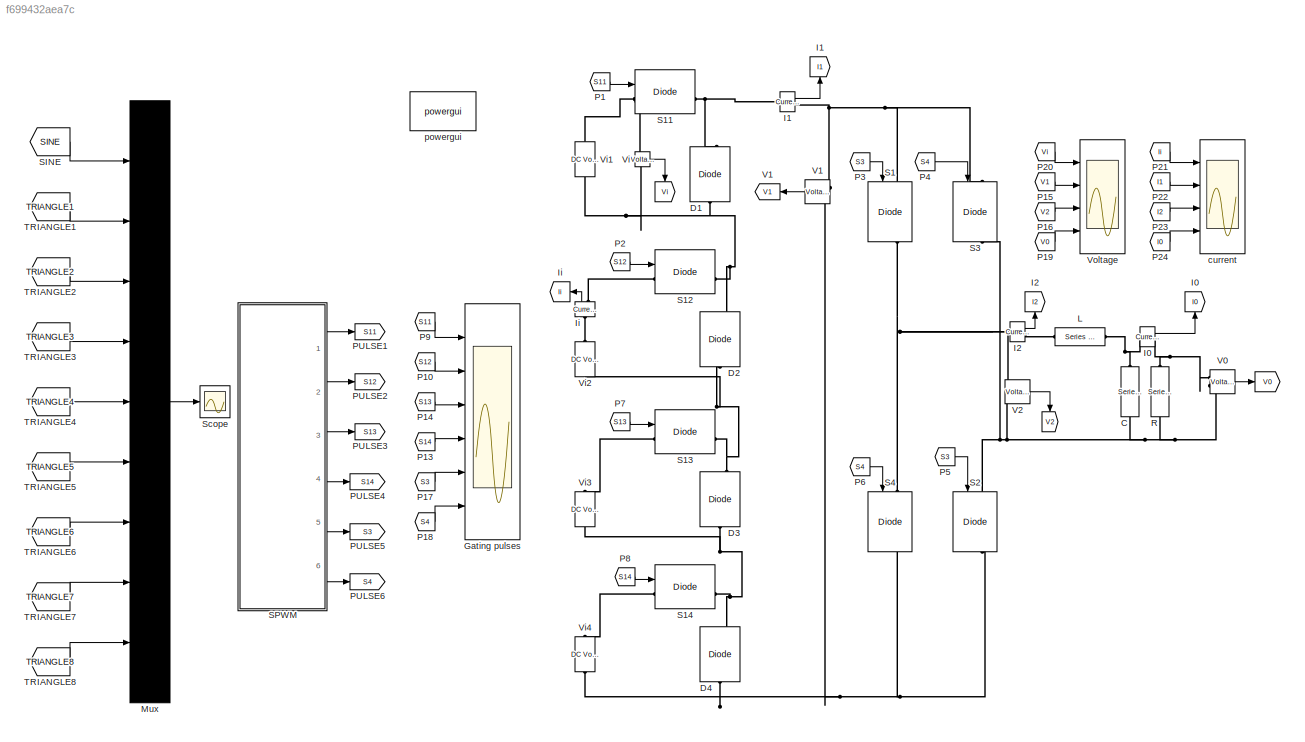
MODEL slx_f699432aea7c
KIND model
BLOCK [Goto]  
  GotoTag = V0
  TagVisibility = global
BLOCK [Goto]   
  GotoTag = Vi
  TagVisibility = global
BLOCK [Goto]    
  GotoTag = V2
  TagVisibility = global
BLOCK [Goto]    I1 
  GotoTag = I1
  TagVisibility = global
BLOCK [Goto]    Ii 
  GotoTag = Ii
  TagVisibility = global
BLOCK [Reference] C  REF=powerlib/Elements/Series RLC Branch
  BranchType = C
  Capacitance = 7e-6
  Inductance = 0.1
  InitialCurrent = 0
  InitialVoltage = 0
  LConnTagsString = __new0
  Measurements = None
  Ports = [0, 0, 0, 0, 0, 1, 1]
  RConnTagsString = __new0
  Resistance = 1
  SetiL0 = off
  Setx0 = off
  SourceBlock = powerlib/Elements/Series RLC Branch
  SourceType = Series RLC Branch
BLOCK [Reference] D1  REF=powerlib/Power
Electronics/Diode
  Cs = 250e-9
  IC = 0
  Lon = 0
  Measurements = on
  Ports = [0, 1, 0, 0, 0, 1, 1]
  Ron = 0.001
  Rs = 500
  SourceBlock = powerlib/Power\nElectronics/Diode
  SourceType = Diode
  UseSnubber = off
  Vf = 0.8
BLOCK [Reference] D2  REF=powerlib/Power
Electronics/Diode
  Cs = 250e-9
  IC = 0
  Lon = 0
  Measurements = on
  Ports = [0, 1, 0, 0, 0, 1, 1]
  Ron = 0.001
  Rs = 500
  SourceBlock = powerlib/Power\nElectronics/Diode
  SourceType = Diode
  UseSnubber = off
  Vf = 0.8
BLOCK [Reference] D3  REF=powerlib/Power
Electronics/Diode
  Cs = 250e-9
  IC = 0
  Lon = 0
  Measurements = on
  Ports = [0, 1, 0, 0, 0, 1, 1]
  Ron = 0.001
  Rs = 500
  SourceBlock = powerlib/Power\nElectronics/Diode
  SourceType = Diode
  UseSnubber = off
  Vf = 0.8
BLOCK [Reference] D4  REF=powerlib/Power
Electronics/Diode
  Cs = 250e-9
  IC = 0
  Lon = 0
  Measurements = on
  Ports = [0, 1, 0, 0, 0, 1, 1]
  Ron = 0.001
  Rs = 500
  SourceBlock = powerlib/Power\nElectronics/Diode
  SourceType = Diode
  UseSnubber = off
  Vf = 0.8
BLOCK [Scope] Gating pulses
  DataFormat = StructureWithTime
  Floating = off
  LimitDataPoints = off
  NumInputPorts = 6
  Ports = [6]
  SaveName = gate
  SaveToWorkspace = on
  ShowLegends = off
  YMax = 5~5~5~5~5~5
  YMin = -5~-5~-5~-5~-5~-5
  ZoomMode = xonly
BLOCK [Reference] I0  REF=powerlib/Measurements/Current Measurement
  OutputType = Complex
  PSBequivalent = 0
  PhasorSimulation = off
  Ports = [0, 1, 0, 0, 0, 1, 1]
  SourceBlock = powerlib/Measurements/Current Measurement
  SourceType = Current Measurement
  UserDataPersistent = on
BLOCK [Goto] I0 
  GotoTag = I0
  TagVisibility = global
BLOCK [Reference] I1  REF=powerlib/Measurements/Current Measurement
  OutputType = Complex
  PSBequivalent = 0
  PhasorSimulation = off
  Ports = [0, 1, 0, 0, 0, 1, 1]
  SourceBlock = powerlib/Measurements/Current Measurement
  SourceType = Current Measurement
  UserDataPersistent = on
BLOCK [Reference] I2  REF=powerlib/Measurements/Current Measurement
  OutputType = Complex
  PSBequivalent = 0
  PhasorSimulation = off
  Ports = [0, 1, 0, 0, 0, 1, 1]
  SourceBlock = powerlib/Measurements/Current Measurement
  SourceType = Current Measurement
  UserDataPersistent = on
BLOCK [Goto] I2 
  GotoTag = I2
  TagVisibility = global
BLOCK [Reference] Ii  REF=powerlib/Measurements/Current Measurement
  OutputType = Complex
  PSBequivalent = 0
  PhasorSimulation = off
  Ports = [0, 1, 0, 0, 0, 1, 1]
  SourceBlock = powerlib/Measurements/Current Measurement
  SourceType = Current Measurement
  UserDataPersistent = on
BLOCK [Reference] L  REF=powerlib/Elements/Series RLC Branch
  BranchType = L
  Capacitance = 1e-6
  Inductance = 61e-3
  InitialCurrent = 0
  InitialVoltage = 0
  LConnTagsString = __new0
  Measurements = None
  Ports = [0, 0, 0, 0, 0, 1, 1]
  RConnTagsString = __new0
  Resistance = 1
  SetiL0 = off
  Setx0 = off
  SourceBlock = powerlib/Elements/Series RLC Branch
  SourceType = Series RLC Branch
BLOCK [Mux] Mux
  DisplayOption = bar
  Inputs = 9
  Ports = [9, 1]
BLOCK [From] P1
  GotoTag = S11
  TagVisibility = global
BLOCK [From] P10
  GotoTag = S12
  TagVisibility = global
BLOCK [From] P13
  GotoTag = S14
  TagVisibility = global
BLOCK [From] P14
  GotoTag = S13
  TagVisibility = global
BLOCK [From] P15
  GotoTag = V1
  TagVisibility = global
BLOCK [From] P16
  GotoTag = V2
  TagVisibility = global
BLOCK [From] P17
  GotoTag = S3
  TagVisibility = global
BLOCK [From] P18
  GotoTag = S4
  TagVisibility = global
BLOCK [From] P19
  GotoTag = V0
  TagVisibility = global
BLOCK [From] P2
  GotoTag = S12
  TagVisibility = global
BLOCK [From] P20
  GotoTag = Vi
  TagVisibility = global
BLOCK [From] P21
  GotoTag = Ii
  TagVisibility = global
BLOCK [From] P22
  GotoTag = I1
  TagVisibility = global
BLOCK [From] P23
  GotoTag = I2
  TagVisibility = global
BLOCK [From] P24
  GotoTag = I0
  TagVisibility = global
BLOCK [From] P3
  GotoTag = S3
  TagVisibility = global
BLOCK [From] P4
  GotoTag = S4
  TagVisibility = global
BLOCK [From] P5
  GotoTag = S3
  TagVisibility = global
BLOCK [From] P6
  GotoTag = S4
  TagVisibility = global
BLOCK [From] P7
  GotoTag = S13
  TagVisibility = global
BLOCK [From] P8
  GotoTag = S14
  TagVisibility = global
BLOCK [From] P9
  GotoTag = S11
  TagVisibility = global
BLOCK [Goto] PULSE1
  GotoTag = S11
  TagVisibility = global
BLOCK [Goto] PULSE2
  GotoTag = S12
  TagVisibility = global
BLOCK [Goto] PULSE3
  GotoTag = S13
  TagVisibility = global
BLOCK [Goto] PULSE4
  GotoTag = S14
  TagVisibility = global
BLOCK [Goto] PULSE5
  GotoTag = S3
  TagVisibility = global
BLOCK [Goto] PULSE6
  GotoTag = S4
  TagVisibility = global
BLOCK [Reference] R  REF=powerlib/Elements/Series RLC Branch
  BranchType = R
  Capacitance = 1e-6
  Inductance = 20e-6
  InitialCurrent = 0
  InitialVoltage = 0
  LConnTagsString = __new0
  Measurements = None
  Ports = [0, 0, 0, 0, 0, 1, 1]
  RConnTagsString = __new0
  Resistance = 90
  SetiL0 = off
  Setx0 = off
  SourceBlock = powerlib/Elements/Series RLC Branch
  SourceType = Series RLC Branch
BLOCK [Reference] S1  REF=powerlib/Power
Electronics/IGBT//Diode
  Cs = inf
  Measurements = on
  Ports = [1, 1, 0, 0, 0, 1, 1]
  Ron = 1e-3
  Rs = 1e5
  SourceBlock = powerlib/Power\nElectronics/IGBT//Diode
  SourceType = IGBT/Diode
BLOCK [Reference] S11  REF=powerlib/Power
Electronics/IGBT//Diode
  Cs = inf
  Measurements = on
  Ports = [1, 1, 0, 0, 0, 1, 1]
  Ron = 1e-3
  Rs = 1e5
  SourceBlock = powerlib/Power\nElectronics/IGBT//Diode
  SourceType = IGBT/Diode
BLOCK [Reference] S12  REF=powerlib/Power
Electronics/IGBT//Diode
  Cs = inf
  Measurements = on
  Ports = [1, 1, 0, 0, 0, 1, 1]
  Ron = 1e-3
  Rs = 1e5
  SourceBlock = powerlib/Power\nElectronics/IGBT//Diode
  SourceType = IGBT/Diode
BLOCK [Reference] S13  REF=powerlib/Power
Electronics/IGBT//Diode
  Cs = inf
  Measurements = on
  Ports = [1, 1, 0, 0, 0, 1, 1]
  Ron = 1e-3
  Rs = 1e5
  SourceBlock = powerlib/Power\nElectronics/IGBT//Diode
  SourceType = IGBT/Diode
BLOCK [Reference] S14  REF=powerlib/Power
Electronics/IGBT//Diode
  Cs = inf
  Measurements = on
  Ports = [1, 1, 0, 0, 0, 1, 1]
  Ron = 1e-3
  Rs = 1e5
  SourceBlock = powerlib/Power\nElectronics/IGBT//Diode
  SourceType = IGBT/Diode
BLOCK [Reference] S2  REF=powerlib/Power
Electronics/IGBT//Diode
  Cs = inf
  Measurements = on
  Ports = [1, 1, 0, 0, 0, 1, 1]
  Ron = 1e-3
  Rs = 1e5
  SourceBlock = powerlib/Power\nElectronics/IGBT//Diode
  SourceType = IGBT/Diode
BLOCK [Reference] S3  REF=powerlib/Power
Electronics/IGBT//Diode
  Cs = inf
  Measurements = on
  Ports = [1, 1, 0, 0, 0, 1, 1]
  Ron = 1e-3
  Rs = 1e5
  SourceBlock = powerlib/Power\nElectronics/IGBT//Diode
  SourceType = IGBT/Diode
BLOCK [Reference] S4  REF=powerlib/Power
Electronics/IGBT//Diode
  Cs = inf
  Measurements = on
  Ports = [1, 1, 0, 0, 0, 1, 1]
  Ron = 1e-3
  Rs = 1e5
  SourceBlock = powerlib/Power\nElectronics/IGBT//Diode
  SourceType = IGBT/Diode
BLOCK [From] SINE
  GotoTag = SINE
  TagVisibility = global
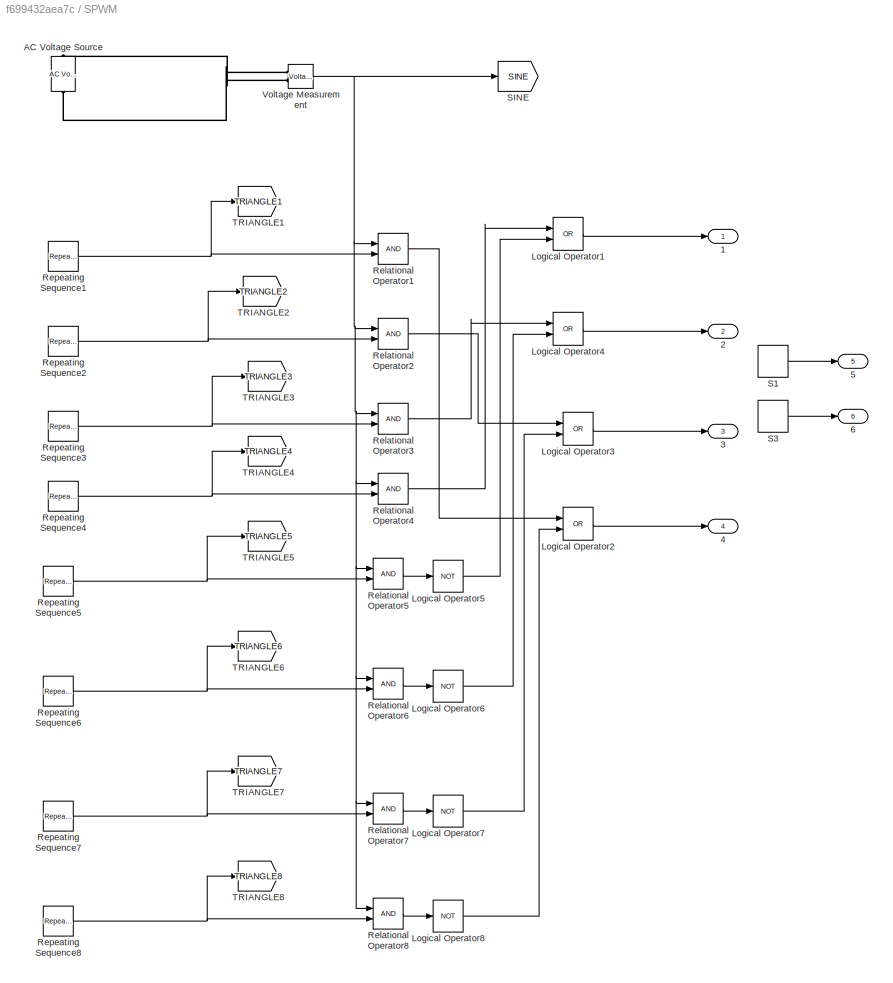
BLOCK [SubSystem] SPWM
  Ports = [0, 6]
  RequestExecContextInheritance = off
BLOCK [Outport] SPWM/1
  IconDisplay = Port number
BLOCK [Outport] SPWM/2
  IconDisplay = Port number
  Port = 2
BLOCK [Outport] SPWM/3
  IconDisplay = Port number
  Port = 3
BLOCK [Outport] SPWM/4
  IconDisplay = Port number
  Port = 4
BLOCK [Outport] SPWM/5
  IconDisplay = Port number
  Port = 5
BLOCK [Outport] SPWM/6
  IconDisplay = Port number
  Port = 6
BLOCK [Reference] SPWM/AC Voltage Source  REF=powerlib/Electrical
Sources/AC Voltage Source
  Amplitude = 4
  Frequency = 50
  Measurements = None
  Phase = 0
  Ports = [0, 0, 0, 0, 0, 1, 1]
  SampleTime = 0
  SourceBlock = powerlib/Electrical\nSources/AC Voltage Source
  SourceType = AC Voltage Source
BLOCK [Logic] SPWM/Logical Operator1
  AllPortsSameDT = off
  Operator = OR
  OutDataTypeStr = boolean
  Ports = [2, 1]
BLOCK [Logic] SPWM/Logical Operator2
  AllPortsSameDT = off
  Operator = OR
  OutDataTypeStr = boolean
  Ports = [2, 1]
BLOCK [Logic] SPWM/Logical Operator3
  AllPortsSameDT = off
  Operator = OR
  OutDataTypeStr = boolean
  Ports = [2, 1]
BLOCK [Logic] SPWM/Logical Operator4
  AllPortsSameDT = off
  Operator = OR
  OutDataTypeStr = boolean
  Ports = [2, 1]
BLOCK [Logic] SPWM/Logical Operator5
  AllPortsSameDT = off
  Operator = NOT
  OutDataTypeStr = boolean
  Ports = [1, 1]
BLOCK [Logic] SPWM/Logical Operator6
  AllPortsSameDT = off
  Operator = NOT
  OutDataTypeStr = boolean
  Ports = [1, 1]
BLOCK [Logic] SPWM/Logical Operator7
  AllPortsSameDT = off
  Operator = NOT
  OutDataTypeStr = boolean
  Ports = [1, 1]
BLOCK [Logic] SPWM/Logical Operator8
  AllPortsSameDT = off
  Operator = NOT
  OutDataTypeStr = boolean
  Ports = [1, 1]
BLOCK [RelationalOperator] SPWM/Relational Operator1
  InputSameDT = off
  OutDataTypeStr = boolean
  Ports = [2, 1]
BLOCK [RelationalOperator] SPWM/Relational Operator2
  InputSameDT = off
  OutDataTypeStr = boolean
  Ports = [2, 1]
BLOCK [RelationalOperator] SPWM/Relational Operator3
  InputSameDT = off
  OutDataTypeStr = boolean
  Ports = [2, 1]
BLOCK [RelationalOperator] SPWM/Relational Operator4
  InputSameDT = off
  OutDataTypeStr = boolean
  Ports = [2, 1]
BLOCK [RelationalOperator] SPWM/Relational Operator5
  InputSameDT = off
  OutDataTypeStr = boolean
  Ports = [2, 1]
BLOCK [RelationalOperator] SPWM/Relational Operator6
  InputSameDT = off
  OutDataTypeStr = boolean
  Ports = [2, 1]
BLOCK [RelationalOperator] SPWM/Relational Operator7
  InputSameDT = off
  OutDataTypeStr = boolean
  Ports = [2, 1]
BLOCK [RelationalOperator] SPWM/Relational Operator8
  InputSameDT = off
  OutDataTypeStr = boolean
  Ports = [2, 1]
BLOCK [Reference] SPWM/Repeating Sequence1  REF=simulink/Sources/Repeating
Sequence
  Ports = [0, 1]
  SourceBlock = simulink/Sources/Repeating\nSequence
  SourceType = Repeating table
  rep_seq_t = [0 0.5 1]/2500
  rep_seq_y = [3 4 3]
BLOCK [Reference] SPWM/Repeating Sequence2  REF=simulink/Sources/Repeating
Sequence
  Ports = [0, 1]
  SourceBlock = simulink/Sources/Repeating\nSequence
  SourceType = Repeating table
  rep_seq_t = [0 0.5 1]/2500
  rep_seq_y = [2 3 2]
BLOCK [Reference] SPWM/Repeating Sequence3  REF=simulink/Sources/Repeating
Sequence
  Ports = [0, 1]
  SourceBlock = simulink/Sources/Repeating\nSequence
  SourceType = Repeating table
  rep_seq_t = [0 0.5 1]/2500
  rep_seq_y = [1 2 1]
BLOCK [Reference] SPWM/Repeating Sequence4  REF=simulink/Sources/Repeating
Sequence
  Ports = [0, 1]
  SourceBlock = simulink/Sources/Repeating\nSequence
  SourceType = Repeating table
  rep_seq_t = [0 0.5 1]/2500
  rep_seq_y = [0 1 0]
BLOCK [Reference] SPWM/Repeating Sequence5  REF=simulink/Sources/Repeating
Sequence
  Ports = [0, 1]
  SourceBlock = simulink/Sources/Repeating\nSequence
  SourceType = Repeating table
  rep_seq_t = [0 0.5 1]/2500
  rep_seq_y = [-1 0 -1]
BLOCK [Reference] SPWM/Repeating Sequence6  REF=simulink/Sources/Repeating
Sequence
  Ports = [0, 1]
  SourceBlock = simulink/Sources/Repeating\nSequence
  SourceType = Repeating table
  rep_seq_t = [0 0.5 1]/2500
  rep_seq_y = [-2 -1 -2]
BLOCK [Reference] SPWM/Repeating Sequence7  REF=simulink/Sources/Repeating
Sequence
  Ports = [0, 1]
  SourceBlock = simulink/Sources/Repeating\nSequence
  SourceType = Repeating table
  rep_seq_t = [0 0.5 1]/2500
  rep_seq_y = [-3 -2 -3]
BLOCK [Reference] SPWM/Repeating Sequence8  REF=simulink/Sources/Repeating
Sequence
  Ports = [0, 1]
  SourceBlock = simulink/Sources/Repeating\nSequence
  SourceType = Repeating table
  rep_seq_t = [0 0.5 1]/2500
  rep_seq_y = [-4 -3 -4]
BLOCK [DiscretePulseGenerator] SPWM/S1
  Period = 0.02
  Ports = [0, 1]
  PulseType = Time based
  PulseWidth = 50
BLOCK [DiscretePulseGenerator] SPWM/S3
  Period = 0.02
  PhaseDelay = 0.01
  Ports = [0, 1]
  PulseType = Time based
  PulseWidth = 50
BLOCK [Goto] SPWM/SINE
  GotoTag = SINE
  TagVisibility = global
BLOCK [Goto] SPWM/TRIANGLE1
  GotoTag = TRIANGLE1
  TagVisibility = global
BLOCK [Goto] SPWM/TRIANGLE2
  GotoTag = TRIANGLE2
  TagVisibility = global
BLOCK [Goto] SPWM/TRIANGLE3
  GotoTag = TRIANGLE3
  TagVisibility = global
BLOCK [Goto] SPWM/TRIANGLE4
  GotoTag = TRIANGLE4
  TagVisibility = global
BLOCK [Goto] SPWM/TRIANGLE5
  GotoTag = TRIANGLE5
  TagVisibility = global
BLOCK [Goto] SPWM/TRIANGLE6
  GotoTag = TRIANGLE6
  TagVisibility = global
BLOCK [Goto] SPWM/TRIANGLE7
  GotoTag = TRIANGLE7
  TagVisibility = global
BLOCK [Goto] SPWM/TRIANGLE8
  GotoTag = TRIANGLE8
  TagVisibility = global
BLOCK [Reference] SPWM/Voltage Measurement  REF=powerlib/Measurements/Voltage Measurement
  OutputType = Complex
  PSBequivalent = 0
  PhasorSimulation = off
  Ports = [0, 1, 0, 0, 0, 2]
  SourceBlock = powerlib/Measurements/Voltage Measurement
  SourceType = Voltage Measurement
  UserDataPersistent = on
BLOCK [Scope] Scope
  DataFormat = StructureWithTime
  Floating = off
  LimitDataPoints = off
  NumInputPorts = 1
  Ports = [1]
  SaveName = sine
  SaveToWorkspace = on
  ShowLegends = off
  TickLabels = on
  ZoomMode = xonly
BLOCK [From] TRIANGLE1
  GotoTag = TRIANGLE1
  TagVisibility = global
BLOCK [From] TRIANGLE2
  GotoTag = TRIANGLE2
  TagVisibility = global
BLOCK [From] TRIANGLE3
  GotoTag = TRIANGLE3
  TagVisibility = global
BLOCK [From] TRIANGLE4
  GotoTag = TRIANGLE4
  TagVisibility = global
BLOCK [From] TRIANGLE5
  GotoTag = TRIANGLE5
  TagVisibility = global
BLOCK [From] TRIANGLE6
  GotoTag = TRIANGLE6
  TagVisibility = global
BLOCK [From] TRIANGLE7
  GotoTag = TRIANGLE7
  TagVisibility = global
BLOCK [From] TRIANGLE8
  GotoTag = TRIANGLE8
  TagVisibility = global
BLOCK [Reference] V0  REF=powerlib/Measurements/Voltage Measurement
  OutputType = Complex
  PSBequivalent = 0
  PhasorSimulation = off
  Ports = [0, 1, 0, 0, 0, 2]
  SourceBlock = powerlib/Measurements/Voltage Measurement
  SourceType = Voltage Measurement
  UserDataPersistent = on
BLOCK [Reference] V1  REF=powerlib/Measurements/Voltage Measurement
  OutputType = Complex
  PSBequivalent = 0
  PhasorSimulation = off
  Ports = [0, 1, 0, 0, 0, 2]
  SourceBlock = powerlib/Measurements/Voltage Measurement
  SourceType = Voltage Measurement
  UserDataPersistent = on
BLOCK [Goto] V1 
  GotoTag = V1
  TagVisibility = global
BLOCK [Reference] V2  REF=powerlib/Measurements/Voltage Measurement
  OutputType = Complex
  PSBequivalent = 0
  PhasorSimulation = off
  Ports = [0, 1, 0, 0, 0, 2]
  SourceBlock = powerlib/Measurements/Voltage Measurement
  SourceType = Voltage Measurement
  UserDataPersistent = on
BLOCK [Reference] Vi  REF=powerlib/Measurements/Voltage Measurement
  OutputType = Complex
  PSBequivalent = 0
  PhasorSimulation = off
  Ports = [0, 1, 0, 0, 0, 2]
  SourceBlock = powerlib/Measurements/Voltage Measurement
  SourceType = Voltage Measurement
  UserDataPersistent = on
BLOCK [Reference] Vi1  REF=powerlib/Electrical
Sources/DC Voltage Source
  Amplitude = 57.5
  Measurements = None
  Ports = [0, 0, 0, 0, 0, 1, 1]
  SourceBlock = powerlib/Electrical\nSources/DC Voltage Source
  SourceType = DC Voltage Source
BLOCK [Reference] Vi2  REF=powerlib/Electrical
Sources/DC Voltage Source
  Amplitude = 57.5
  Measurements = None
  Ports = [0, 0, 0, 0, 0, 1, 1]
  SourceBlock = powerlib/Electrical\nSources/DC Voltage Source
  SourceType = DC Voltage Source
BLOCK [Reference] Vi3  REF=powerlib/Electrical
Sources/DC Voltage Source
  Amplitude = 57.5
  Measurements = None
  Ports = [0, 0, 0, 0, 0, 1, 1]
  SourceBlock = powerlib/Electrical\nSources/DC Voltage Source
  SourceType = DC Voltage Source
BLOCK [Reference] Vi4  REF=powerlib/Electrical
Sources/DC Voltage Source
  Amplitude = 57.4
  Measurements = None
  Ports = [0, 0, 0, 0, 0, 1, 1]
  SourceBlock = powerlib/Electrical\nSources/DC Voltage Source
  SourceType = DC Voltage Source
BLOCK [Scope] Voltage
  DataFormat = StructureWithTime
  Floating = off
  LimitDataPoints = off
  NumInputPorts = 4
  Ports = [4]
  SaveName = voltage
  SaveToWorkspace = on
  ShowLegends = off
  TimeRange = 0.08
  YMax = 57.5~250~400~400
  YMin = 57.25~0~-400~-400
  ZoomMode = xonly
BLOCK [Scope] current
  DataFormat = StructureWithTime
  Floating = off
  LimitDataPoints = off
  NumInputPorts = 4
  Ports = [4]
  SaveName = current
  SaveToWorkspace = on
  ShowLegends = off
  YMax = 70~5~230~5
  YMin = 0~-5~-230~-5
  ZoomMode = xonly
BLOCK [Reference] powergui  REF=powerlib/powergui
  DisableRonSwitches = off
  DisableSnubberDevices = off
  DisableVfSwitches = off
  DisplayEquations = off
  DisplayStyle = 1
  EnableUseOfTLC = off
  ErrMax = 1e-4
  Frange = [0:2:500]
  FreqAxis = off
  FunctionMessages = off
  HookPort = off
  Interpol = off
  Iterations = 50
  MaxFrequency = 1000
  Pbase = 100e6
  Ports = []
  Priority = 1
  ResistiveCurrentMeasurement = off
  RestoreLinks = warning
  RmsSteady = 1
  SPID = off
  SampleTime = 50e-6
  ShowGrid = off
  SolverType = Tustin
  SourceBlock = powerlib/powergui
  SourceType = PSB option menu block
  StartTime = 0.04
  SwTol = 0
  Ts = 0
  UnitsV = kV
  UnitsW = MW
  UserDataPersistent = on
  Xlog = on
  Ylog = off
  ZoomFFT = off
  cycles = 1
  display = off
  echomessages = off
  frequency = 60
  frequencyindice = 0
  frequencyindicesteady = 1
  fundamental = 50
  methode = off
  save = off
  structure = Voltage1
  variable = ZData
  x0status = blocks
LINE I0:1 -> I0 :1
LINE I1:1 ->    I1 :1
LINE I2:1 -> I2 :1
LINE Ii:1 ->    Ii :1
LINE Mux:1 -> Scope:1
LINE P10:1 -> Gating pulses:2
LINE P13:1 -> Gating pulses:4
LINE P14:1 -> Gating pulses:3
LINE P15:1 -> Voltage:2
LINE P16:1 -> Voltage:3
LINE P17:1 -> Gating pulses:5
LINE P18:1 -> Gating pulses:6
LINE P19:1 -> Voltage:4
LINE P1:1 -> S11:1
LINE P20:1 -> Voltage:1
LINE P21:1 -> current:1
LINE P22:1 -> current:2
LINE P23:1 -> current:3
LINE P24:1 -> current:4
LINE P2:1 -> S12:1
LINE P3:1 -> S1:1
LINE P4:1 -> S3:1
LINE P5:1 -> S2:1
LINE P6:1 -> S4:1
LINE P7:1 -> S13:1
LINE P8:1 -> S14:1
LINE P9:1 -> Gating pulses:1
LINE SINE:1 -> Mux:1
LINE SPWM/Logical Operator1:1 -> SPWM/1:1
LINE SPWM/Logical Operator2:1 -> SPWM/4:1
LINE SPWM/Logical Operator3:1 -> SPWM/3:1
LINE SPWM/Logical Operator4:1 -> SPWM/2:1
LINE SPWM/Logical Operator5:1 -> SPWM/Logical Operator1:2
LINE SPWM/Logical Operator6:1 -> SPWM/Logical Operator4:2
LINE SPWM/Logical Operator7:1 -> SPWM/Logical Operator3:2
LINE SPWM/Logical Operator8:1 -> SPWM/Logical Operator2:2
LINE SPWM/Relational Operator1:1 -> SPWM/Logical Operator2:1
LINE SPWM/Relational Operator2:1 -> SPWM/Logical Operator3:1
LINE SPWM/Relational Operator3:1 -> SPWM/Logical Operator4:1
LINE SPWM/Relational Operator4:1 -> SPWM/Logical Operator1:1
LINE SPWM/Relational Operator5:1 -> SPWM/Logical Operator5:1
LINE SPWM/Relational Operator6:1 -> SPWM/Logical Operator6:1
LINE SPWM/Relational Operator7:1 -> SPWM/Logical Operator7:1
LINE SPWM/Relational Operator8:1 -> SPWM/Logical Operator8:1
NET SPWM/Repeating Sequence1:1 -> SPWM/Relational Operator1:2, SPWM/TRIANGLE1:1
NET SPWM/Repeating Sequence2:1 -> SPWM/Relational Operator2:2, SPWM/TRIANGLE2:1
NET SPWM/Repeating Sequence3:1 -> SPWM/Relational Operator3:2, SPWM/TRIANGLE3:1
NET SPWM/Repeating Sequence4:1 -> SPWM/Relational Operator4:2, SPWM/TRIANGLE4:1
NET SPWM/Repeating Sequence5:1 -> SPWM/Relational Operator5:2, SPWM/TRIANGLE5:1
NET SPWM/Repeating Sequence6:1 -> SPWM/Relational Operator6:2, SPWM/TRIANGLE6:1
NET SPWM/Repeating Sequence7:1 -> SPWM/Relational Operator7:2, SPWM/TRIANGLE7:1
NET SPWM/Repeating Sequence8:1 -> SPWM/Relational Operator8:2, SPWM/TRIANGLE8:1
LINE SPWM/S1:1 -> SPWM/5:1
LINE SPWM/S3:1 -> SPWM/6:1
NET SPWM/Voltage Measurement:1 -> SPWM/Relational Operator1:1, SPWM/Relational Operator2:1, SPWM/Relational Operator3:1, SPWM/Relational Operator4:1, SPWM/Relational Operator5:1, SPWM/Relational Operator6:1, SPWM/Relational Operator7:1, SPWM/Relational Operator8:1, SPWM/SINE:1
LINE SPWM:1 -> PULSE1:1
LINE SPWM:2 -> PULSE2:1
LINE SPWM:3 -> PULSE3:1
LINE SPWM:4 -> PULSE4:1
LINE SPWM:5 -> PULSE5:1
LINE SPWM:6 -> PULSE6:1
LINE TRIANGLE1:1 -> Mux:2
LINE TRIANGLE2:1 -> Mux:3
LINE TRIANGLE3:1 -> Mux:4
LINE TRIANGLE4:1 -> Mux:5
LINE TRIANGLE5:1 -> Mux:6
LINE TRIANGLE6:1 -> Mux:7
LINE TRIANGLE7:1 -> Mux:8
LINE TRIANGLE8:1 -> Mux:9
LINE V0:1 ->  :1
LINE V1:1 -> V1 :1
LINE V2:1 ->    :1
LINE Vi:1 ->   :1
PNET net1: C:LConn1 -- I0:LConn1 -- L:LConn1
PNET net2: C:RConn1 -- R:RConn1 -- S2:LConn1 -- S3:RConn1 -- V0:LConn2 -- V2:LConn2
PNET net3: D1:LConn1 -- D2:RConn1 -- S12:RConn1 -- Vi1:LConn1 -- Vi:LConn2
PNET net4: D1:RConn1 -- I1:LConn1 -- S11:RConn1
PNET net5: D2:LConn1 -- D3:RConn1 -- S13:RConn1 -- Vi2:LConn1
PNET net6: D3:LConn1 -- D4:RConn1 -- S14:RConn1 -- Vi3:LConn1
PNET net7: D4:LConn1 -- S2:RConn1 -- S4:RConn1 -- V1:LConn2 -- Vi4:LConn1
PNET net8: I0:RConn1 -- R:LConn1 -- V0:LConn1
PNET net9: I1:RConn1 -- S1:LConn1 -- S3:LConn1 -- V1:LConn1
PNET net10: I2:LConn1 -- S1:RConn1 -- S4:LConn1 -- V2:LConn1
PLINE I2:RConn1 -- L:RConn1
PLINE Ii:LConn1 -- Vi2:RConn1
PLINE Ii:RConn1 -- S12:LConn1
PNET net11: S11:LConn1 -- Vi1:RConn1 -- Vi:LConn1
PLINE S13:LConn1 -- Vi3:RConn1
PLINE S14:LConn1 -- Vi4:RConn1
PLINE SPWM/AC Voltage Source:LConn1 -- SPWM/Voltage Measurement:LConn2
PLINE SPWM/AC Voltage Source:RConn1 -- SPWM/Voltage Measurement:LConn1
note: NET lines group one-source signal fan-out (src -> all destinations, sorted); 1:1 wires keep LINE; PNET lines group multi-terminal physical nets as a canonical sorted terminal list (undirected conserving connections); 2-terminal nets keep the pairwise PLINE form
